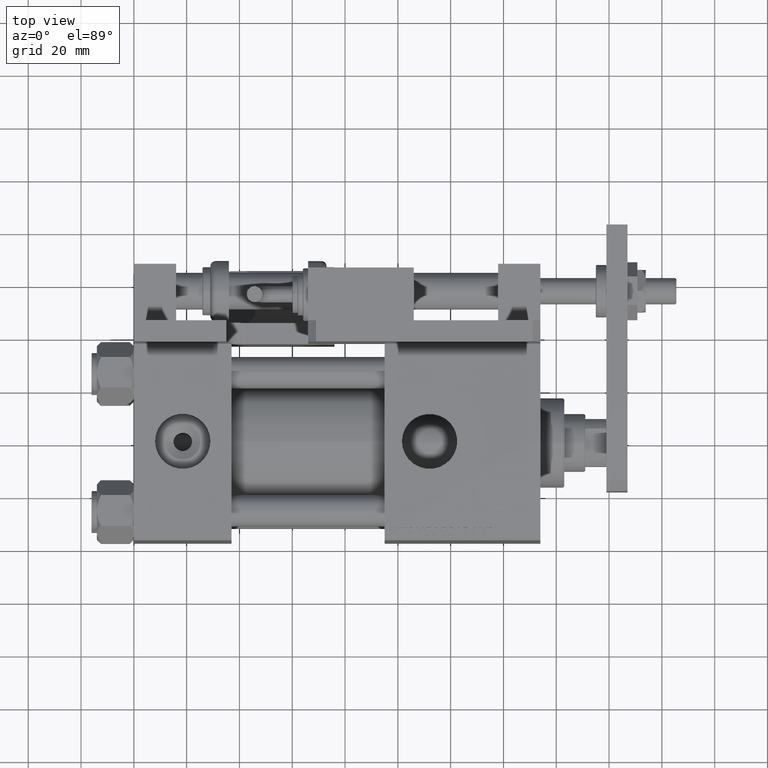
[diagram: clean part render]
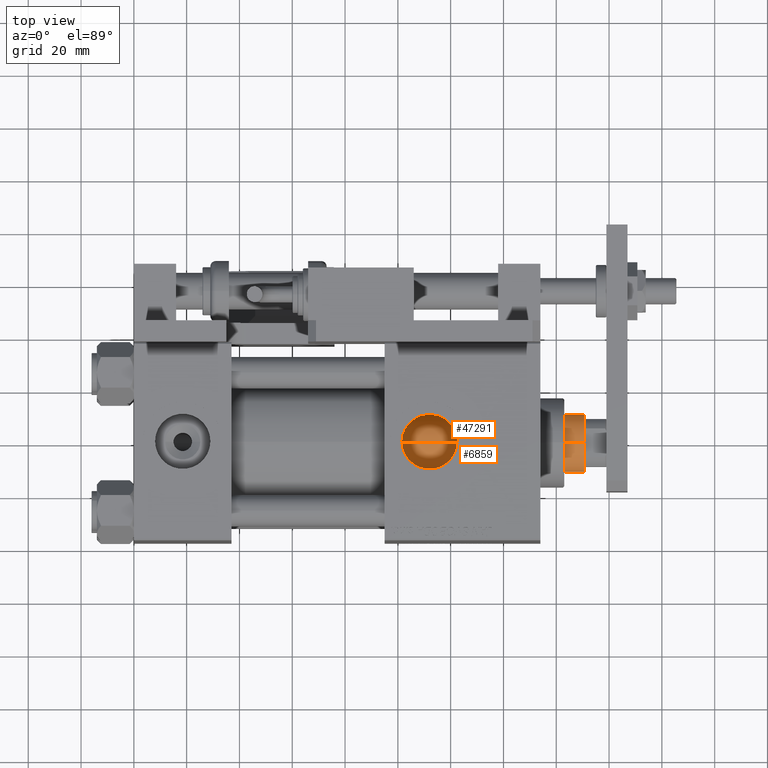
[diagram: same view with one multi-face feature highlighted, each face labeled with its STEP entity id]
A machine part, top view. The highlighted faces form ONE feature: a constant-radius fillet chain: 2 tangent blend faces with common blend radius 11 mm. The faces share edges in the B-rep.
Their STEP definitions:
[1] entity #47291 (Cylinder):
#1319 = CARTESIAN_POINT ( 'NONE',  ( 11.00000000000000000, 1.347111479062088405E-15, 134.0000000000000000 ) ) ;
#2455 = CIRCLE ( 'NONE', #43090, 11.00000000000000000 ) ;
#3262 = VERTEX_POINT ( 'NONE', #8897 ) ;
#7312 = ORIENTED_EDGE ( 'NONE', *, *, #12900, .F. ) ;
#8690 = CARTESIAN_POINT ( 'NONE',  ( -11.00000000000000000, 0.000000000000000000, 134.0000000000000000 ) ) ;
#8897 = CARTESIAN_POINT ( 'NONE',  ( -11.00000000000000000, 0.000000000000000000, 38.00000000000000000 ) ) ;
#10070 = VERTEX_POINT ( 'NONE', #32053 ) ;
#10224 = DIRECTION ( 'NONE',  ( -1.000000000000000000, 0.000000000000000000, 0.000000000000000000 ) ) ;
#10226 = AXIS2_PLACEMENT_3D ( 'NONE', #14656, #10424, #13820 ) ;
#10424 = DIRECTION ( 'NONE',  ( 0.000000000000000000, 0.000000000000000000, 1.000000000000000000 ) ) ;
#12900 = EDGE_CURVE ( 'NONE', #34676, #10070, #34731, .T. ) ;
#13820 = DIRECTION ( 'NONE',  ( 1.000000000000000000, 0.000000000000000000, 0.000000000000000000 ) ) ;
#14656 = CARTESIAN_POINT ( 'NONE',  ( 0.000000000000000000, 0.000000000000000000, 38.00000000000000000 ) ) ;
#17837 = EDGE_CURVE ( 'NONE', #50292, #3262, #35279, .T. ) ;
#17870 = CARTESIAN_POINT ( 'NONE',  ( 0.000000000000000000, 0.000000000000000000, 134.0000000000000000 ) ) ;
#18853 = DIRECTION ( 'NONE',  ( 1.000000000000000000, 0.000000000000000000, 0.000000000000000000 ) ) ;
#19415 = CARTESIAN_POINT ( 'NONE',  ( 0.000000000000000000, 0.000000000000000000, 133.5000000000000000 ) ) ;
#20578 = CARTESIAN_POINT ( 'NONE',  ( 11.00000000000000000, 1.347111479062088405E-15, 133.5000000000000000 ) ) ;
#20665 = VECTOR ( 'NONE', #51945, 1000.000000000000000 ) ;
#23187 = ORIENTED_EDGE ( 'NONE', *, *, #48129, .T. ) ;
#25578 = EDGE_LOOP ( 'NONE', ( #7312, #23187, #48374, #33761 ) ) ;
#25659 = EDGE_CURVE ( 'NONE', #3262, #10070, #30100, .T. ) ;
#30100 = CIRCLE ( 'NONE', #10226, 11.00000000000000000 ) ;
#30204 = DIRECTION ( 'NONE',  ( -0.000000000000000000, -0.000000000000000000, -1.000000000000000000 ) ) ;
#31720 = CYLINDRICAL_SURFACE ( 'NONE', #34042, 11.00000000000000000 ) ;
#32053 = CARTESIAN_POINT ( 'NONE',  ( 11.00000000000000000, 1.347111479062088405E-15, 38.00000000000000000 ) ) ;
#33761 = ORIENTED_EDGE ( 'NONE', *, *, #25659, .T. ) ;
#34042 = AXIS2_PLACEMENT_3D ( 'NONE', #17870, #44979, #10224 ) ;
#34676 = VERTEX_POINT ( 'NONE', #20578 ) ;
#34731 = LINE ( 'NONE', #1319, #20665 ) ;
#35279 = LINE ( 'NONE', #8690, #44322 ) ;
#36113 = DIRECTION ( 'NONE',  ( 0.000000000000000000, 0.000000000000000000, -1.000000000000000000 ) ) ;
#40191 = FACE_OUTER_BOUND ( 'NONE', #25578, .T. ) ;
#43090 = AXIS2_PLACEMENT_3D ( 'NONE', #19415, #36113, #18853 ) ;
#44322 = VECTOR ( 'NONE', #30204, 1000.000000000000000 ) ;
#44979 = DIRECTION ( 'NONE',  ( -0.000000000000000000, -0.000000000000000000, -1.000000000000000000 ) ) ;
#47291 = ADVANCED_FACE ( 'NONE', ( #40191 ), #31720, .T. ) ;
#48129 = EDGE_CURVE ( 'NONE', #34676, #50292, #2455, .T. ) ;
#48374 = ORIENTED_EDGE ( 'NONE', *, *, #17837, .T. ) ;
#50292 = VERTEX_POINT ( 'NONE', #53220 ) ;
#51945 = DIRECTION ( 'NONE',  ( -0.000000000000000000, -0.000000000000000000, -1.000000000000000000 ) ) ;
#53220 = CARTESIAN_POINT ( 'NONE',  ( -11.00000000000000000, 0.000000000000000000, 133.5000000000000000 ) ) ;
[2] entity #6859 (Cylinder):
#1319 = CARTESIAN_POINT ( 'NONE',  ( 11.00000000000000000, 1.347111479062088405E-15, 134.0000000000000000 ) ) ;
#1869 = ORIENTED_EDGE ( 'NONE', *, *, #5032, .T. ) ;
#2381 = CYLINDRICAL_SURFACE ( 'NONE', #46854, 11.00000000000000000 ) ;
#2977 = DIRECTION ( 'NONE',  ( 1.000000000000000000, 0.000000000000000000, 0.000000000000000000 ) ) ;
#3262 = VERTEX_POINT ( 'NONE', #8897 ) ;
#4041 = EDGE_CURVE ( 'NONE', #50292, #34676, #26033, .T. ) ;
#4924 = DIRECTION ( 'NONE',  ( 0.000000000000000000, 0.000000000000000000, 1.000000000000000000 ) ) ;
#5032 = EDGE_CURVE ( 'NONE', #10070, #3262, #29673, .T. ) ;
#5207 = AXIS2_PLACEMENT_3D ( 'NONE', #28754, #27627, #2977 ) ;
#6149 = AXIS2_PLACEMENT_3D ( 'NONE', #39703, #4924, #9737 ) ;
#6358 = DIRECTION ( 'NONE',  ( -0.000000000000000000, -0.000000000000000000, -1.000000000000000000 ) ) ;
#6859 = ADVANCED_FACE ( 'NONE', ( #15972 ), #2381, .T. ) ;
#8690 = CARTESIAN_POINT ( 'NONE',  ( -11.00000000000000000, 0.000000000000000000, 134.0000000000000000 ) ) ;
#8897 = CARTESIAN_POINT ( 'NONE',  ( -11.00000000000000000, 0.000000000000000000, 38.00000000000000000 ) ) ;
#9737 = DIRECTION ( 'NONE',  ( 1.000000000000000000, 0.000000000000000000, 0.000000000000000000 ) ) ;
#10070 = VERTEX_POINT ( 'NONE', #32053 ) ;
#12900 = EDGE_CURVE ( 'NONE', #34676, #10070, #34731, .T. ) ;
#15689 = CARTESIAN_POINT ( 'NONE',  ( 0.000000000000000000, 0.000000000000000000, 134.0000000000000000 ) ) ;
#15972 = FACE_OUTER_BOUND ( 'NONE', #33755, .T. ) ;
#17837 = EDGE_CURVE ( 'NONE', #50292, #3262, #35279, .T. ) ;
#20578 = CARTESIAN_POINT ( 'NONE',  ( 11.00000000000000000, 1.347111479062088405E-15, 133.5000000000000000 ) ) ;
#20665 = VECTOR ( 'NONE', #51945, 1000.000000000000000 ) ;
#23251 = ORIENTED_EDGE ( 'NONE', *, *, #4041, .T. ) ;
#26033 = CIRCLE ( 'NONE', #5207, 11.00000000000000000 ) ;
#27627 = DIRECTION ( 'NONE',  ( 0.000000000000000000, 0.000000000000000000, -1.000000000000000000 ) ) ;
#28754 = CARTESIAN_POINT ( 'NONE',  ( 0.000000000000000000, 0.000000000000000000, 133.5000000000000000 ) ) ;
#28844 = ORIENTED_EDGE ( 'NONE', *, *, #17837, .F. ) ;
#29673 = CIRCLE ( 'NONE', #6149, 11.00000000000000000 ) ;
#30204 = DIRECTION ( 'NONE',  ( -0.000000000000000000, -0.000000000000000000, -1.000000000000000000 ) ) ;
#32053 = CARTESIAN_POINT ( 'NONE',  ( 11.00000000000000000, 1.347111479062088405E-15, 38.00000000000000000 ) ) ;
#33217 = DIRECTION ( 'NONE',  ( -1.000000000000000000, 0.000000000000000000, 0.000000000000000000 ) ) ;
#33755 = EDGE_LOOP ( 'NONE', ( #23251, #35575, #1869, #28844 ) ) ;
#34676 = VERTEX_POINT ( 'NONE', #20578 ) ;
#34731 = LINE ( 'NONE', #1319, #20665 ) ;
#35279 = LINE ( 'NONE', #8690, #44322 ) ;
#35575 = ORIENTED_EDGE ( 'NONE', *, *, #12900, .T. ) ;
#39703 = CARTESIAN_POINT ( 'NONE',  ( 0.000000000000000000, 0.000000000000000000, 38.00000000000000000 ) ) ;
#44322 = VECTOR ( 'NONE', #30204, 1000.000000000000000 ) ;
#46854 = AXIS2_PLACEMENT_3D ( 'NONE', #15689, #6358, #33217 ) ;
#50292 = VERTEX_POINT ( 'NONE', #53220 ) ;
#51945 = DIRECTION ( 'NONE',  ( -0.000000000000000000, -0.000000000000000000, -1.000000000000000000 ) ) ;
#53220 = CARTESIAN_POINT ( 'NONE',  ( -11.00000000000000000, 0.000000000000000000, 133.5000000000000000 ) ) ;